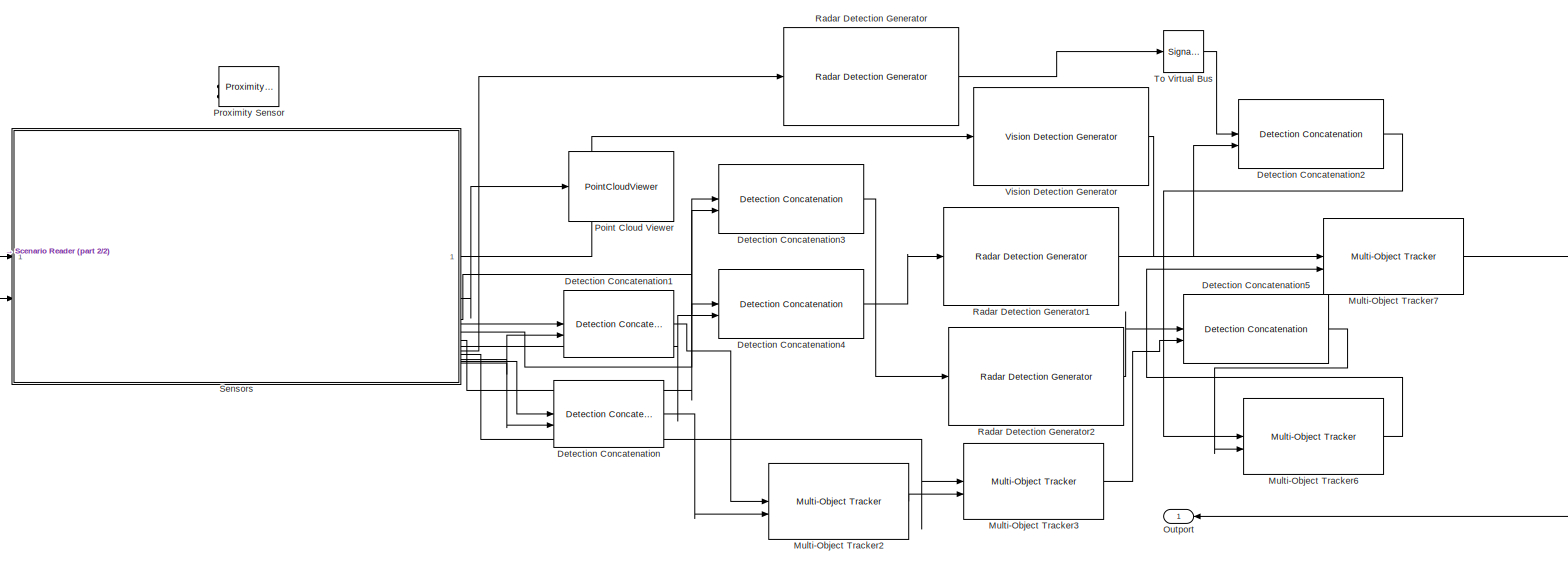
[diagram: root canvas - part 1/2, most of the canvas]
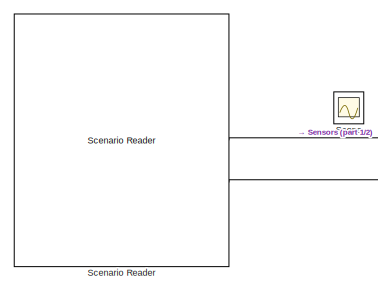
[diagram: root canvas - part 2/2, middle left region]
MODEL slx_c8fa9cbaf7a0
KIND model
CONFIG AbsTol = auto
CONFIG EnableMultiTasking = off
CONFIG FixedStep = auto
CONFIG MaxStep = auto
CONFIG MinStep = auto
CONFIG RelTol = 1e-3
CONFIG SampleTimeConstraint = Unconstrained
CONFIG SolverName = FixedStepDiscrete
CONFIG StartTime = 0.0
CONFIG StopTime = 10.0
WORKSPACE source: mxarray member
WORKSPACE firstWarning = 1
WORKSPACE originalScenarioChecksum = 'EEE19331CB00A09C48E14005A3669D73'
BLOCK [Reference] Detection Concatenation  REF=trackingutilitieslib/Detection Concatenation
  SourceBlock = trackingutilitieslib/Detection Concatenation
  SourceType = matlabshared.tracking.internal.DetectionConcatenation
BLOCK [Reference] Detection Concatenation1  REF=trackingutilitieslib/Detection Concatenation
  SourceBlock = trackingutilitieslib/Detection Concatenation
  SourceType = matlabshared.tracking.internal.DetectionConcatenation
BLOCK [Reference] Detection Concatenation2  REF=trackingutilitieslib/Detection Concatenation
  LibrarySourceBlock = drivinglib/Detection Concatenation
  SourceBlock = trackingutilitieslib/Detection Concatenation
  SourceType = matlabshared.tracking.internal.DetectionConcatenation
BLOCK [Reference] Detection Concatenation3  REF=trackingutilitieslib/Detection Concatenation
  LibrarySourceBlock = drivinglib/Detection Concatenation
  SourceBlock = trackingutilitieslib/Detection Concatenation
  SourceType = matlabshared.tracking.internal.DetectionConcatenation
BLOCK [Reference] Detection Concatenation4  REF=trackingutilitieslib/Detection Concatenation
  LibrarySourceBlock = drivinglib/Detection Concatenation
  SourceBlock = trackingutilitieslib/Detection Concatenation
  SourceType = matlabshared.tracking.internal.DetectionConcatenation
BLOCK [Reference] Detection Concatenation5  REF=trackingutilitieslib/Detection Concatenation
  LibrarySourceBlock = drivinglib/Detection Concatenation
  SourceBlock = trackingutilitieslib/Detection Concatenation
  SourceType = matlabshared.tracking.internal.DetectionConcatenation
BLOCK [Reference] Multi-Object Tracker2  REF=drivinglib/Multi-Object Tracker
  SourceBlock = drivinglib/Multi-Object Tracker
  SourceType = multiObjectTracker
BLOCK [Reference] Multi-Object Tracker3  REF=drivinglib/Multi-Object Tracker
  SourceBlock = drivinglib/Multi-Object Tracker
  SourceType = multiObjectTracker
BLOCK [Reference] Multi-Object Tracker6  REF=drivinglib/Multi-Object Tracker
  SourceBlock = drivinglib/Multi-Object Tracker
  SourceType = multiObjectTracker
BLOCK [Reference] Multi-Object Tracker7  REF=drivinglib/Multi-Object Tracker
  SourceBlock = drivinglib/Multi-Object Tracker
  SourceType = multiObjectTracker
BLOCK [Outport] Outport
BLOCK [PointCloudViewer] Point Cloud Viewer
  ScopeSpecificationString = vipscopes.PointCloudViewerScopeCfg('CurrentConfiguration', extmgr.ConfigurationSet(extmgr.Configuration('Core','General UI',true),extmgr.Configuration('Core','Source UI',true),extmgr.Configuration('Sources','WiredSimulink',true),extmgr.Configuration('Visuals','Point Cloud',true)),'Version','2024b')
BLOCK [Reference] Proximity Sensor  REF=ee_lib/Sensors &
Transducers/Proximity Sensor
  SourceBlock = ee_lib/Sensors &\nTransducers/Proximity Sensor
  SourceType = Proximity Sensor
BLOCK [Reference] Radar Detection Generator  REF=drivingscenarioandsensors/Radar Detection Generator
  SourceBlock = drivingscenarioandsensors/Radar Detection Generator
  SourceType = radarDetectionGenerator
BLOCK [Reference] Radar Detection Generator1  REF=drivingscenarioandsensors/Radar Detection Generator
  SourceBlock = drivingscenarioandsensors/Radar Detection Generator
  SourceType = radarDetectionGenerator
BLOCK [Reference] Radar Detection Generator2  REF=drivingscenarioandsensors/Radar Detection Generator
  SourceBlock = drivingscenarioandsensors/Radar Detection Generator
  SourceType = radarDetectionGenerator
BLOCK [Reference] Scenario Reader  REF=drivingscenarioandsensors/Scenario Reader
  SourceBlock = drivingscenarioandsensors/Scenario Reader
  SourceType = driving.scenario.internal.ScenarioReader
BLOCK [Scope] Scope
  Floating = off
  IOType = viewer
  NumInputPorts = 1
  ScopeSpecificationString = Simulink.scopes.TimeScopeBlockCfg('CurrentConfiguration', extmgr.ConfigurationSet(extmgr.Configuration('Core','General UI',true),extmgr.Configuration('Core','Source UI',true),extmgr.Configuration('Sources','WiredSimulink',true),extmgr.Configuration('Visuals','Time Domain',true,'SerializedDisplays',{struct('MinYLimReal','-10','MaxYLimReal','10','YLabelReal','','MinYLimMag','0','MaxYLimMag','10','Le...<+810ch>
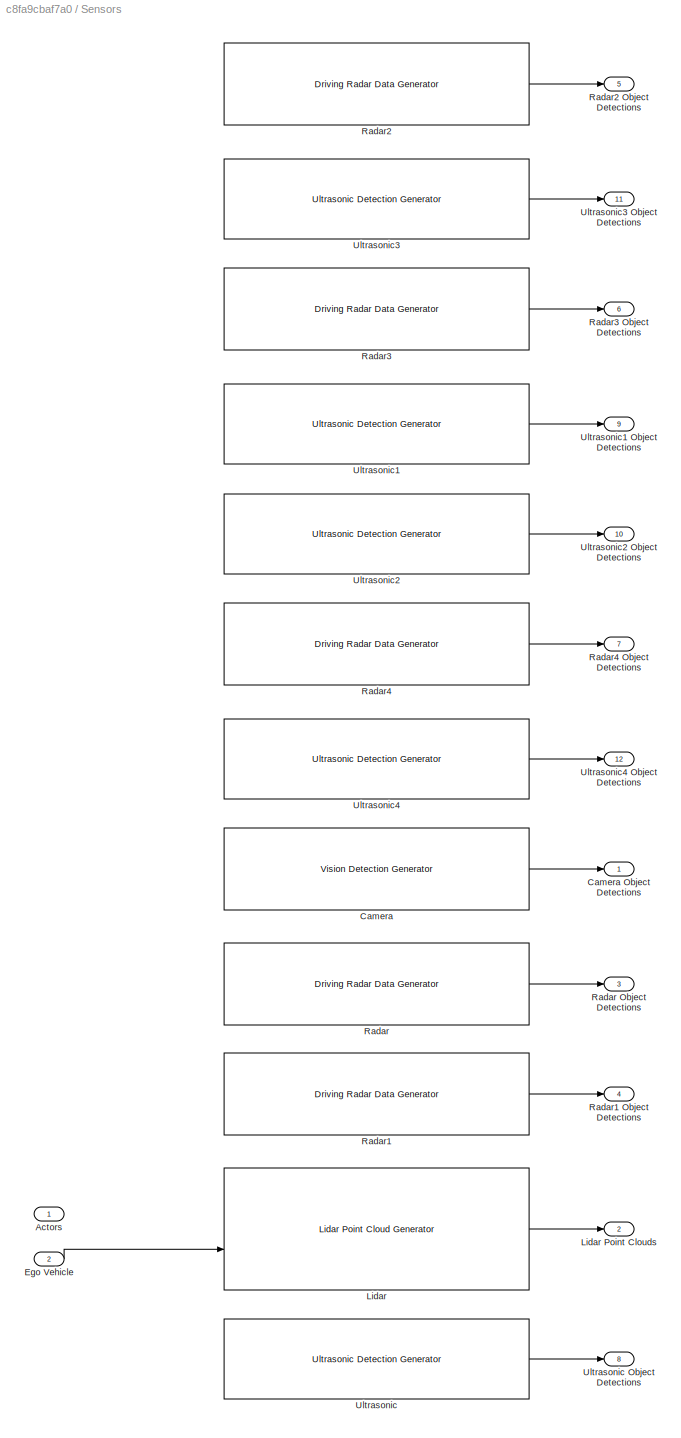
BLOCK [SubSystem] Sensors
BLOCK [Inport] Sensors/Actors
BLOCK [Reference] Sensors/Camera  REF=drivingscenarioandsensors/Vision Detection Generator
  SourceBlock = drivingscenarioandsensors/Vision Detection Generator
  SourceType = visionDetectionGenerator
BLOCK [Outport] Sensors/Camera Object Detections
BLOCK [Inport] Sensors/Ego Vehicle
  Port = 2
BLOCK [Reference] Sensors/Lidar  REF=drivingscenarioandsensors/Lidar Point Cloud Generator
  SourceBlock = drivingscenarioandsensors/Lidar Point Cloud Generator
  SourceType = lidarPointCloudGenerator
BLOCK [Outport] Sensors/Lidar Point Clouds
  Port = 2
BLOCK [Reference] Sensors/Radar  REF=drivingscenarioandsensors/Driving Radar Data Generator
  SourceBlock = drivingscenarioandsensors/Driving Radar Data Generator
  SourceType = drivingRadarDataGenerator
BLOCK [Outport] Sensors/Radar Object Detections
  Port = 3
BLOCK [Reference] Sensors/Radar1  REF=drivingscenarioandsensors/Driving Radar Data Generator
  SourceBlock = drivingscenarioandsensors/Driving Radar Data Generator
  SourceType = drivingRadarDataGenerator
BLOCK [Outport] Sensors/Radar1 Object Detections
  Port = 4
BLOCK [Reference] Sensors/Radar2  REF=drivingscenarioandsensors/Driving Radar Data Generator
  SourceBlock = drivingscenarioandsensors/Driving Radar Data Generator
  SourceType = drivingRadarDataGenerator
BLOCK [Outport] Sensors/Radar2 Object Detections
  Port = 5
BLOCK [Reference] Sensors/Radar3  REF=drivingscenarioandsensors/Driving Radar Data Generator
  SourceBlock = drivingscenarioandsensors/Driving Radar Data Generator
  SourceType = drivingRadarDataGenerator
BLOCK [Outport] Sensors/Radar3 Object Detections
  Port = 6
BLOCK [Reference] Sensors/Radar4  REF=drivingscenarioandsensors/Driving Radar Data Generator
  SourceBlock = drivingscenarioandsensors/Driving Radar Data Generator
  SourceType = drivingRadarDataGenerator
BLOCK [Outport] Sensors/Radar4 Object Detections
  Port = 7
BLOCK [Reference] Sensors/Ultrasonic  REF=drivingscenarioandsensors/Ultrasonic Detection Generator
  SourceBlock = drivingscenarioandsensors/Ultrasonic Detection Generator
  SourceType = ultrasonicDetectionGenerator
BLOCK [Outport] Sensors/Ultrasonic Object Detections
  Port = 8
BLOCK [Reference] Sensors/Ultrasonic1  REF=drivingscenarioandsensors/Ultrasonic Detection Generator
  SourceBlock = drivingscenarioandsensors/Ultrasonic Detection Generator
  SourceType = ultrasonicDetectionGenerator
BLOCK [Outport] Sensors/Ultrasonic1 Object Detections
  Port = 9
BLOCK [Reference] Sensors/Ultrasonic2  REF=drivingscenarioandsensors/Ultrasonic Detection Generator
  SourceBlock = drivingscenarioandsensors/Ultrasonic Detection Generator
  SourceType = ultrasonicDetectionGenerator
BLOCK [Outport] Sensors/Ultrasonic2 Object Detections
  Port = 10
BLOCK [Reference] Sensors/Ultrasonic3  REF=drivingscenarioandsensors/Ultrasonic Detection Generator
  SourceBlock = drivingscenarioandsensors/Ultrasonic Detection Generator
  SourceType = ultrasonicDetectionGenerator
BLOCK [Outport] Sensors/Ultrasonic3 Object Detections
  Port = 11
BLOCK [Reference] Sensors/Ultrasonic4  REF=drivingscenarioandsensors/Ultrasonic Detection Generator
  SourceBlock = drivingscenarioandsensors/Ultrasonic Detection Generator
  SourceType = ultrasonicDetectionGenerator
BLOCK [Outport] Sensors/Ultrasonic4 Object Detections
  Port = 12
BLOCK [SignalConversion] To Virtual Bus
  ConversionOutput = Nonvirtual bus
  OverrideOpt = off
BLOCK [Reference] Vision Detection Generator  REF=drivingscenarioandsensors/Vision Detection Generator
  SourceBlock = drivingscenarioandsensors/Vision Detection Generator
  SourceType = visionDetectionGenerator
LINE Detection Concatenation1:1 -> Multi-Object Tracker2:1
LINE Detection Concatenation2:1 -> Multi-Object Tracker6:1
LINE Detection Concatenation3:1 -> Radar Detection Generator2:1
LINE Detection Concatenation4:1 -> Radar Detection Generator1:1
LINE Detection Concatenation5:1 -> Multi-Object Tracker6:2
LINE Detection Concatenation:1 -> Multi-Object Tracker2:2
LINE Multi-Object Tracker2:1 -> Multi-Object Tracker3:2
LINE Multi-Object Tracker3:1 -> Detection Concatenation5:2
LINE Multi-Object Tracker6:1 -> Multi-Object Tracker7:2
LINE Multi-Object Tracker7:1 -> Outport:1
LINE Radar Detection Generator1:1 -> Detection Concatenation2:2
LINE Radar Detection Generator2:1 -> Detection Concatenation5:1
LINE Radar Detection Generator:1 -> To Virtual Bus:1
LINE Scenario Reader:1 -> Sensors:1
LINE Scenario Reader:2 -> Sensors:2
LINE Sensors/Camera:1 -> Sensors/Camera Object Detections:1
LINE Sensors/Ego Vehicle:1 -> Sensors/Lidar:2
LINE Sensors/Lidar:1 -> Sensors/Lidar Point Clouds:1
LINE Sensors/Radar1:1 -> Sensors/Radar1 Object Detections:1
LINE Sensors/Radar2:1 -> Sensors/Radar2 Object Detections:1
LINE Sensors/Radar3:1 -> Sensors/Radar3 Object Detections:1
LINE Sensors/Radar4:1 -> Sensors/Radar4 Object Detections:1
LINE Sensors/Radar:1 -> Sensors/Radar Object Detections:1
LINE Sensors/Ultrasonic1:1 -> Sensors/Ultrasonic1 Object Detections:1
LINE Sensors/Ultrasonic2:1 -> Sensors/Ultrasonic2 Object Detections:1
LINE Sensors/Ultrasonic3:1 -> Sensors/Ultrasonic3 Object Detections:1
LINE Sensors/Ultrasonic4:1 -> Sensors/Ultrasonic4 Object Detections:1
LINE Sensors/Ultrasonic:1 -> Sensors/Ultrasonic Object Detections:1
LINE Sensors:1 -> Vision Detection Generator:1
LINE Sensors:10 -> Detection Concatenation1:2
LINE Sensors:11 -> Detection Concatenation:1
LINE Sensors:12 -> Detection Concatenation:2
LINE Sensors:2 -> Point Cloud Viewer:1
LINE Sensors:3 -> Detection Concatenation3:1
LINE Sensors:4 -> Detection Concatenation3:2
LINE Sensors:5 -> Detection Concatenation4:1
LINE Sensors:6 -> Detection Concatenation4:2
LINE Sensors:7 -> Radar Detection Generator:1
LINE Sensors:8 -> Multi-Object Tracker3:1
LINE Sensors:9 -> Detection Concatenation1:1
LINE To Virtual Bus:1 -> Detection Concatenation2:1
LINE Vision Detection Generator:1 -> Multi-Object Tracker7:1
PLINE Proximity Sensor:LConn1 -- Proximity Sensor:LConn2
